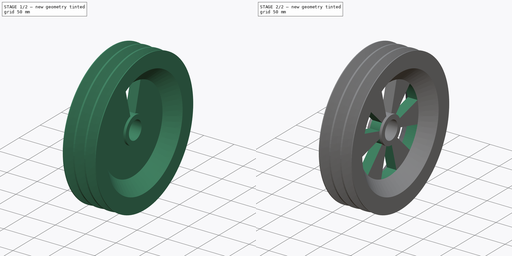
[diagram: build sequence overview — one tinted view per stage of 2, left to right]
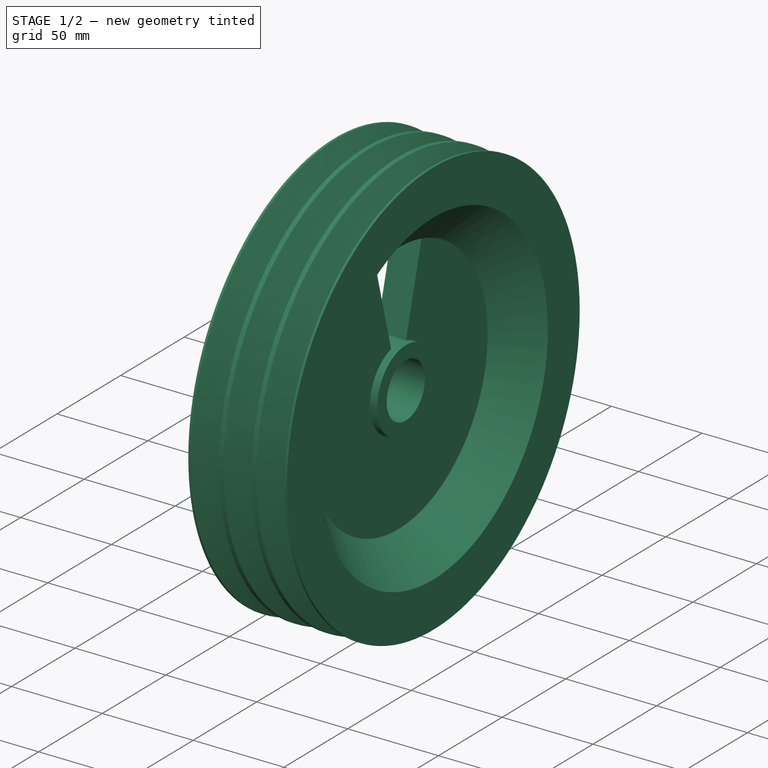
[diagram: stage 1 of 2 — iso view after this stage's code; geometry added in this stage tinted green]
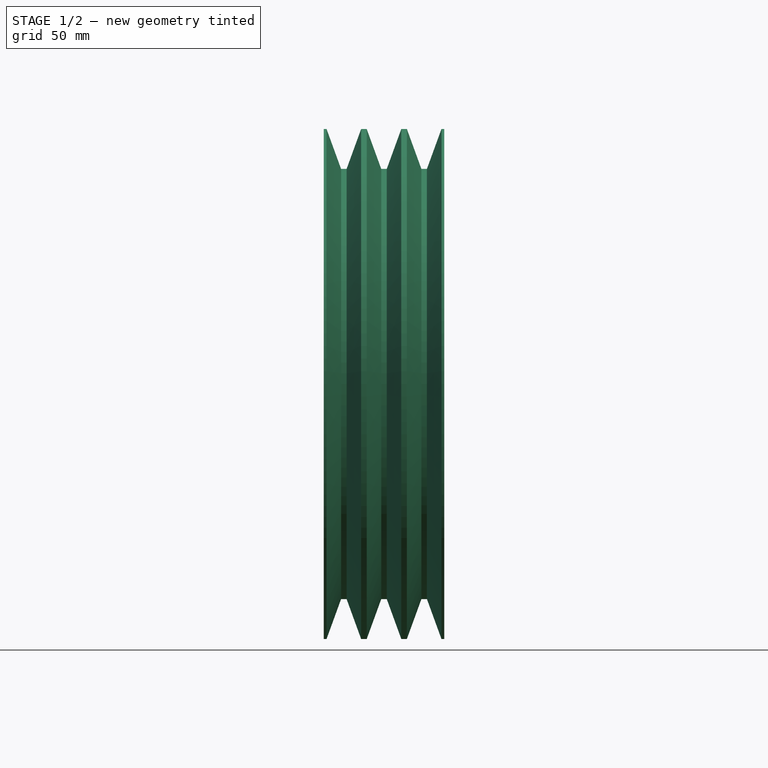
[diagram: stage 1 of 2 — front view after this stage's code; geometry added in this stage tinted green]
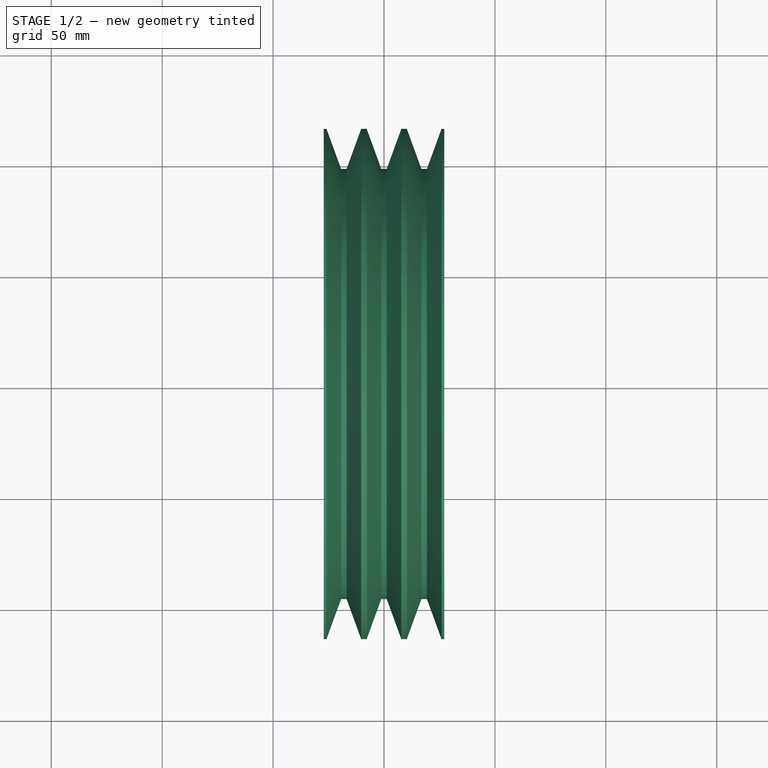
[diagram: stage 1 of 2 — top view after this stage's code; geometry added in this stage tinted green]
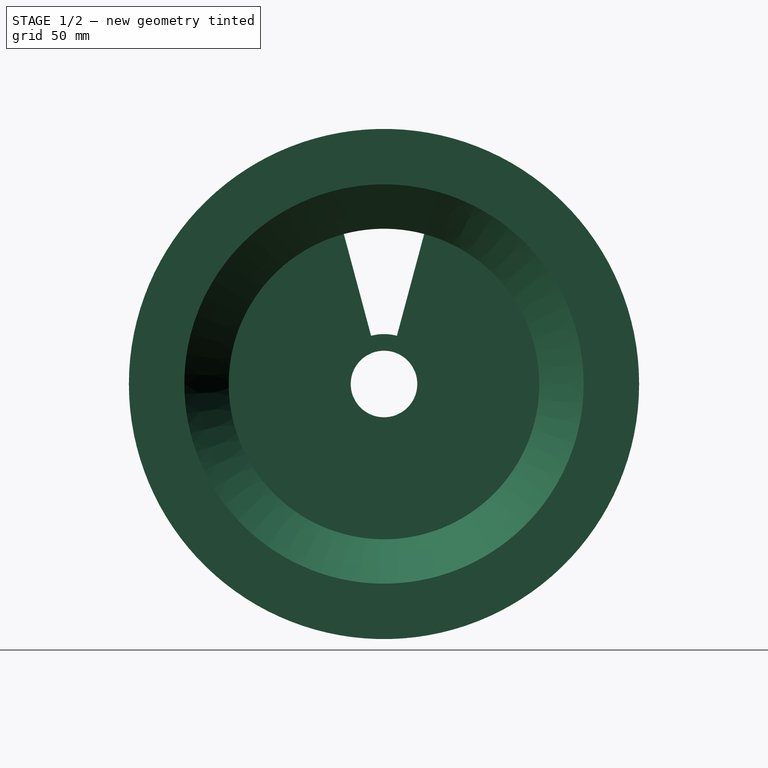
[diagram: stage 1 of 2 — right view after this stage's code; geometry added in this stage tinted green]
FCSTD DOCUMENT  (FreeCAD 0.18R4 (GitTag))
Label: l 9 Q3
License: All rights reserved
LicenseURL: http://en.wikipedia.org/wiki/All_rights_reserved
objects: Sketcher::SketchObject×2, TechDraw::DrawProjGroupItem×2, PartDesign::Revolution×1, PartDesign::Pocket×1, PartDesign::PolarPattern×1, PartDesign::Body×1, TechDraw::DrawSVGTemplate×1, TechDraw::DrawProjGroup×1, TechDraw::DrawPage×1
note: 8 computed .brp shape members not serialized (recipe doc carries the construction recipe); baked Part::Feature solids carry a one-line shape summary decoded from their .brp

FEATURE [Sketcher::SketchObject] Sketch
  MapMode = 5
  Support = -> [XY_Plane]
  sketch-geometry (24):
    g0: LineSegment StartX=-12 StartY=15 StartZ=0 EndX=12 EndY=15 EndZ=0
    g1: LineSegment StartX=12 StartY=15 StartZ=0 EndX=12 EndY=22.5 EndZ=0
    g2: LineSegment StartX=-12 StartY=22.5 StartZ=0 EndX=-12 EndY=15 EndZ=0
    g3: LineSegment StartX=8 StartY=22.5 StartZ=0 EndX=8 EndY=70 EndZ=0
    g4: LineSegment StartX=-8 StartY=70 StartZ=0 EndX=-8 EndY=22.5 EndZ=0
    g5: LineSegment StartX=-8 StartY=70 StartZ=0 EndX=-27.155 EndY=90 EndZ=0
    g6: LineSegment StartX=8 StartY=70 StartZ=0 EndX=27.155 EndY=90 EndZ=0
    g7: LineSegment StartX=-27.155 StartY=90 StartZ=0 EndX=-27.155 EndY=115 EndZ=0
    g8: LineSegment StartX=27.155 StartY=90 StartZ=0 EndX=27.155 EndY=115 EndZ=0
    g9: LineSegment StartX=-27.155 StartY=115 StartZ=0 EndX=-25.905 EndY=115 EndZ=0
    g10: LineSegment StartX=-25.905 StartY=115 StartZ=0 EndX=-19.3535 EndY=97 EndZ=0
    g11: LineSegment StartX=-19.3535 StartY=97 StartZ=0 EndX=-16.8535 EndY=97 EndZ=0
    g12: LineSegment StartX=-16.8535 StartY=97 StartZ=0 EndX=-10.3021 EndY=115 EndZ=0
    g13: LineSegment StartX=-10.3021 StartY=115 StartZ=0 EndX=-7.80207 EndY=115 EndZ=0
    g14: LineSegment StartX=-7.80207 StartY=115 StartZ=0 EndX=-1.25061 EndY=97 EndZ=0
    g15: LineSegment StartX=-1.25061 StartY=97 StartZ=0 EndX=1.24939 EndY=97 EndZ=0
    g16: LineSegment StartX=1.24939 StartY=97 StartZ=0 EndX=7.80086 EndY=115 EndZ=0
    g17: LineSegment StartX=7.80086 StartY=115 StartZ=0 EndX=10.3009 EndY=115 EndZ=0
    g18: LineSegment StartX=10.3009 StartY=115 StartZ=0 EndX=16.8523 EndY=97 EndZ=0
    g19: LineSegment StartX=16.8523 StartY=97 StartZ=0 EndX=19.3523 EndY=97 EndZ=0
    g20: LineSegment StartX=19.3523 StartY=97 StartZ=0 EndX=25.905 EndY=115 EndZ=0
    g21: LineSegment StartX=25.905 StartY=115 StartZ=0 EndX=27.155 EndY=115 EndZ=0
    g22: LineSegment StartX=-8 StartY=22.5 StartZ=0 EndX=-12 EndY=22.5 EndZ=0
    g23: LineSegment StartX=8 StartY=22.5 StartZ=0 EndX=12 EndY=22.5 EndZ=0
  constraints (71):
    c: Coincident(g0,g1)
    c: Coincident(g2,g0)
    c: Horizontal(g0)
    c: Vertical(g1)
    c: Vertical(g2)
    c: DistanceX(g-1,g0) = 12
    c: DistanceX(g0,g-1) = 12
    c: Distance(g1) = 7.5
    c: DistanceY(g-1,g0) = 15
    c: Vertical(g3)
    c: Vertical(g4)
    c: DistanceX(g2,g4) = 4
    c: DistanceX(g3,g1) = 4
    c: DistanceY(g4,g4) = 47.5
    c: Coincident(g6,g3)
    c: DistanceX(g5,g4) = 19.155
    c: DistanceX(g3,g6) = 19.155
    c: DistanceY(g3,g6) = 20
    c: DistanceY(g4,g5) = 20
    c: Vertical(g7)
    c: Vertical(g8)
    c: Coincident(g7,g5)
    c: Coincident(g8,g6)
    c: Distance(g8) = 25
    c: Distance(g7) = 25
    c: Coincident(g9,g10)
    c: Coincident(g10,g11)
    c: Coincident(g11,g12)
    c: Coincident(g12,g13)
    c: Coincident(g13,g14)
    c: Coincident(g14,g15)
    c: Coincident(g15,g16)
    c: Coincident(g16,g17)
    c: Coincident(g17,g18)
    c: Coincident(g18,g19)
    c: Coincident(g19,g20)
    c: Coincident(g20,g21)
    c: Horizontal(g9)
    c: Horizontal(g13)
    c: Horizontal(g17)
    c: Horizontal(g21)
    c: Horizontal(g19)
    c: Horizontal(g15)
    c: Horizontal(g11)
    c: Distance(g9) = 1.25
    c: Distance(g13) = 2.5
    c: Distance(g17) = 2.5
    c: Distance(g21) = 1.25
    c: Distance(g11) = 2.5
    c: Distance(g15) = 2.5
    c: Distance(g19) = 2.5
    c: Coincident(g9,g7)
    c: Coincident(g21,g8)
    c: DistanceY(g19,g20) = 18
    c: DistanceY(g18,g17) = 18
    c: DistanceY(g15,g16) = 18
    c: DistanceY(g14,g13) = 18
    c: DistanceY(g10,g12) = 18
    c: Angle(g7,g10) = 0.349066
    c: Angle(g12,g10) = 0.698132
    c: Angle(g12,g14) = 0.698132
    c: Angle(g16,g14) = 0.698132
    c: Angle(g16,g18) = 0.698132
    c: Coincident(g22,g2)
    c: Coincident(g22,g4)
    c: Coincident(g23,g3)
    c: Coincident(g23,g1)
    c: Horizontal(g23)
    c: Horizontal(g22)
    c: Distance(g2) = 7.5
    c: Distance(g3) = 47.5
FEATURE [PartDesign::Revolution] Revolution
  Angle = 360
  Axis = (1,0,0)
  Base = (0,0,0)
  Profile = -> Sketch
  ReferenceAxis = -> X_Axis
FEATURE [Sketcher::SketchObject] Sketch001
  ExternalGeometry = -> [Revolution]
  MapMode = 5
  Placement = pos=(8,0,0) rot=(0.57735,0.57735,0.57735;2.0944rad)
  Support = -> [Revolution]
  sketch-geometry (4):
    g0: ArcOfCircle CenterX=0 CenterY=0 CenterZ=0 NormalX=0 NormalY=0 NormalZ=1 AngleXU=0 Radius=22.5 StartAngle=1.309 EndAngle=1.8326
    g1: ArcOfCircle CenterX=0 CenterY=0 CenterZ=0 NormalX=0 NormalY=0 NormalZ=1 AngleXU=0 Radius=70 StartAngle=1.309 EndAngle=1.8326
    g2: LineSegment StartX=-18.1174 StartY=67.6148 StartZ=0 EndX=-5.82347 EndY=21.7333 EndZ=0
    g3: LineSegment StartX=18.1174 StartY=67.6148 StartZ=0 EndX=5.82347 EndY=21.7333 EndZ=0
  constraints (13):
    c: Coincident(g0,g-1)
    c: Coincident(g1,g0)
    c: Radius(g-3) = 22.5
    c: Radius(g0) = 22.5
    c: Radius(g1) = 70
    c: Coincident(g2,g0)
    c: Coincident(g3,g0)
    c: Coincident(g3,g1)
    c: Coincident(g2,g1)
    c: Angle(g3,g2) = 0.523599
    c: DistanceY(g0,g0) = 0
    c: DistanceY(g1,g1) = 0
    c: Distance(g1,g0) = 47.5
FEATURE [PartDesign::Pocket] Pocket
  BaseFeature = -> Revolution
  Length = 16
  Length2 = 100
  Profile = -> Sketch001
  Type = 0
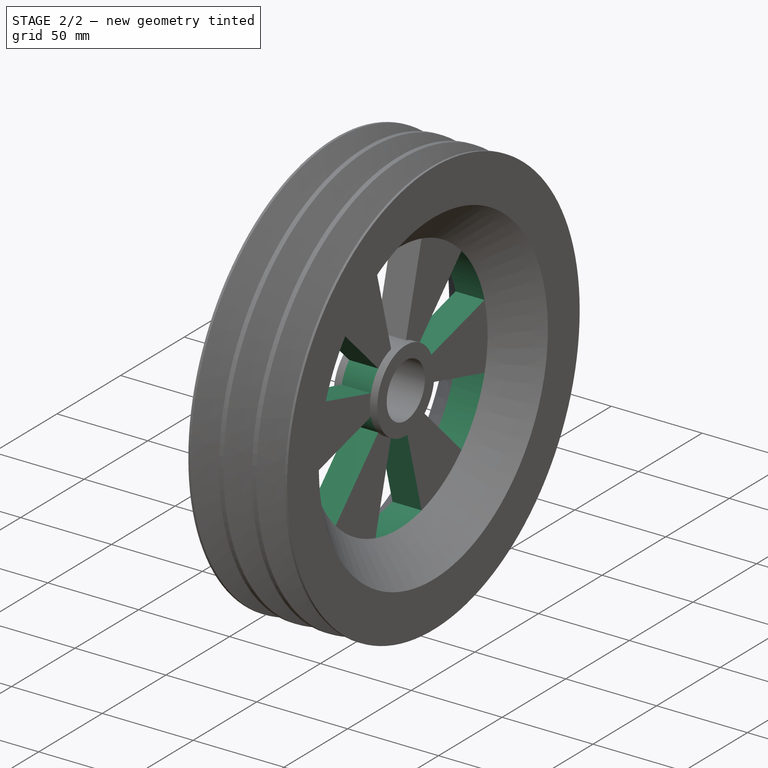
[diagram: stage 2 of 2 — iso view after this stage's code; geometry added in this stage tinted green]
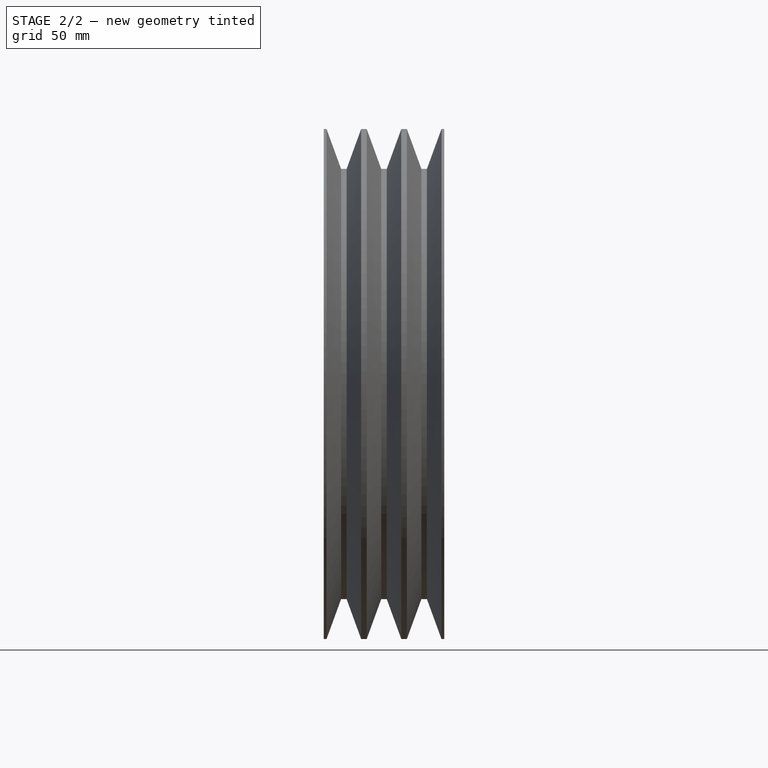
[diagram: stage 2 of 2 — front view after this stage's code; geometry added in this stage tinted green]
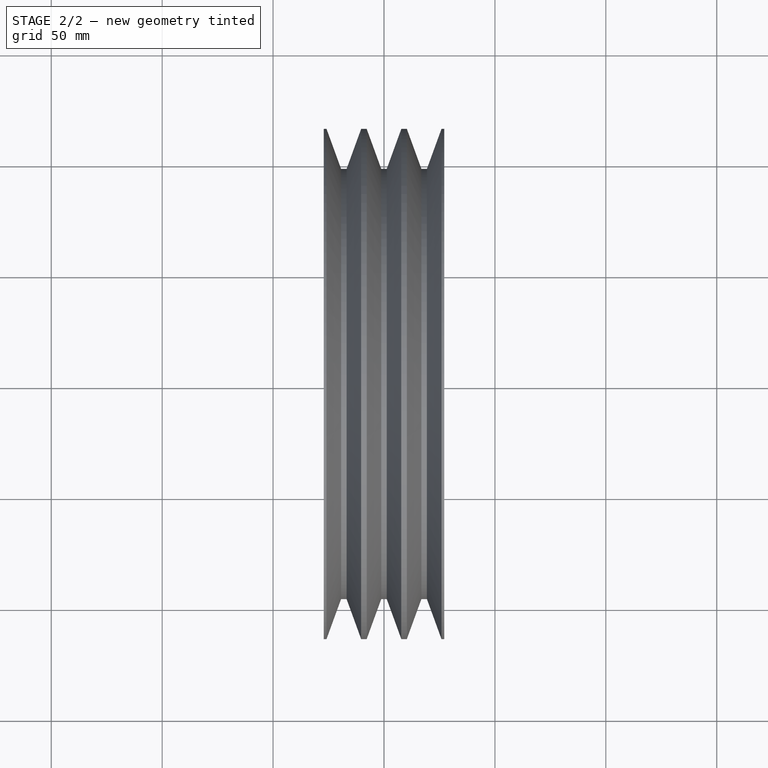
[diagram: stage 2 of 2 — top view after this stage's code; geometry added in this stage tinted green]
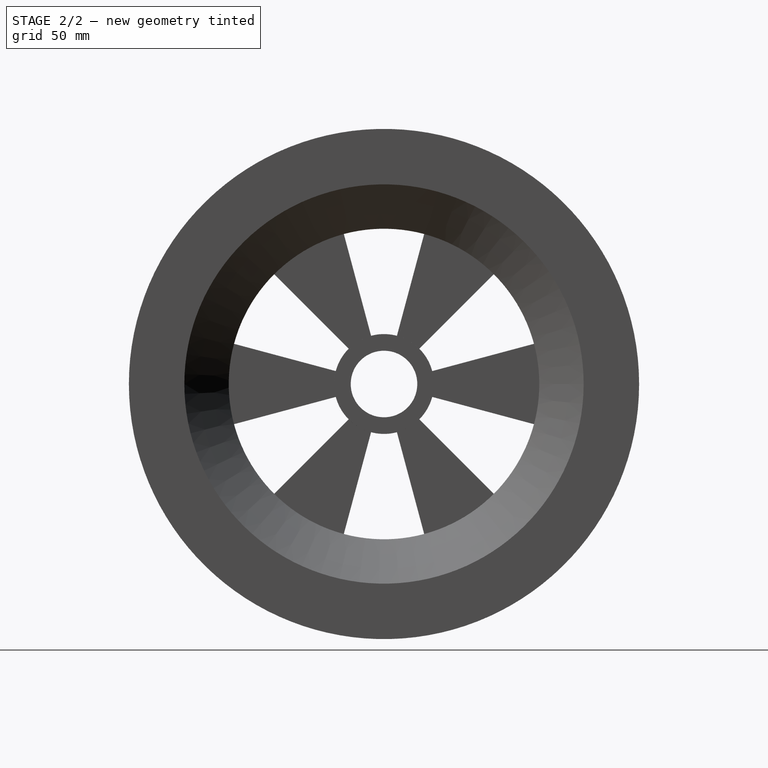
[diagram: stage 2 of 2 — right view after this stage's code; geometry added in this stage tinted green]
FEATURE [PartDesign::PolarPattern] PolarPattern
  Angle = 360
  Axis = -> Sketch001 [N_Axis]
  BaseFeature = -> Pocket
  Occurrences = 6
  Originals = -> [Pocket]
FEATURE [PartDesign::Body] Body
  Group = -> [Sketch,Revolution,Sketch001,Pocket,PolarPattern]
  Origin = -> Origin
  Tip = -> PolarPattern
FEATURE [TechDraw::DrawSVGTemplate] Template
  EditableTexts = AUTHOR_NAME=AUTHOR NAME; DN=DN; DRAWING_TITLE=DRAWING TITLE; FC-DATE=DD/MM/YYYY; FC-REV=REV A; FC-SC=SCALE; FC-SH=X / Y; FC-SI=A3; FreeCAD_DRAWING=FreeCAD DRAWING; PN=PN
  Height = 297
  Orientation = 1
  Width = 420
FEATURE [TechDraw::DrawProjGroupItem] ProjItem  label="Front"
  CoarseView = false
  Direction = (0,-1,0)
  Focus = 100
  HardHidden = false
  IsoCount = 0
  IsoHidden = false
  IsoVisible = false
  LockPosition = true
  Perspective = false
  Rotation = 0
  RotationVector = (1,0,0)
  Scale = 0.7
  ScaleType = 2
  SeamHidden = false
  SeamVisible = false
  SmoothHidden = false
  SmoothVisible = false
  Source = -> [Body]
  Type = 0
  X = 0
  Y = 0
FEATURE [TechDraw::DrawProjGroupItem] ProjItem001  label="Right"
  CoarseView = false
  Direction = (1,-1e-16,0)
  Focus = 100
  HardHidden = false
  IsoCount = 0
  IsoHidden = false
  IsoVisible = false
  LockPosition = false
  Perspective = false
  Rotation = 0
  RotationVector = (1e-16,1,0)
  Scale = 0.7
  ScaleType = 2
  SeamHidden = false
  SeamVisible = false
  SmoothHidden = false
  SmoothVisible = false
  Source = -> [Body]
  Type = 2
  X = -176
  Y = 0
FEATURE [TechDraw::DrawProjGroup] ProjGroup
  Anchor = -> ProjItem
  AutoDistribute = true
  LockPosition = false
  ProjectionType = 0
  Rotation = 0
  Scale = 0.7
  ScaleType = 0
  Source = -> [Body]
  Views = -> [ProjItem,ProjItem001]
  X = 298.805
  Y = 168.767
  spacingX = 15
  spacingY = 15
FEATURE [TechDraw::DrawPage] Page
  KeepUpdated = true
  ProjectionType = 0
  Scale = 0.7
  Template = -> Template
  Views = -> [ProjGroup]
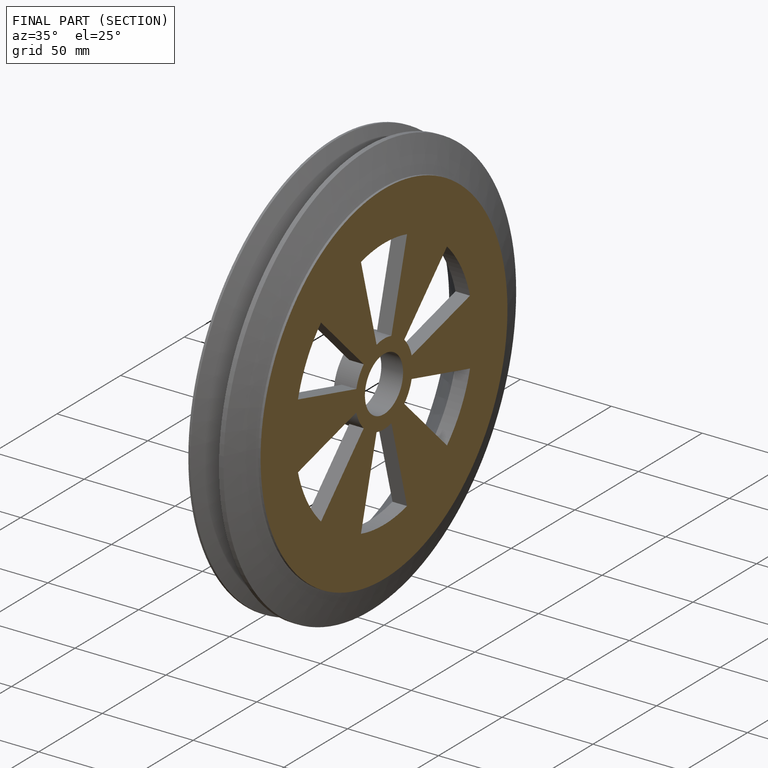
[diagram: finished part — half-section view (interior)]
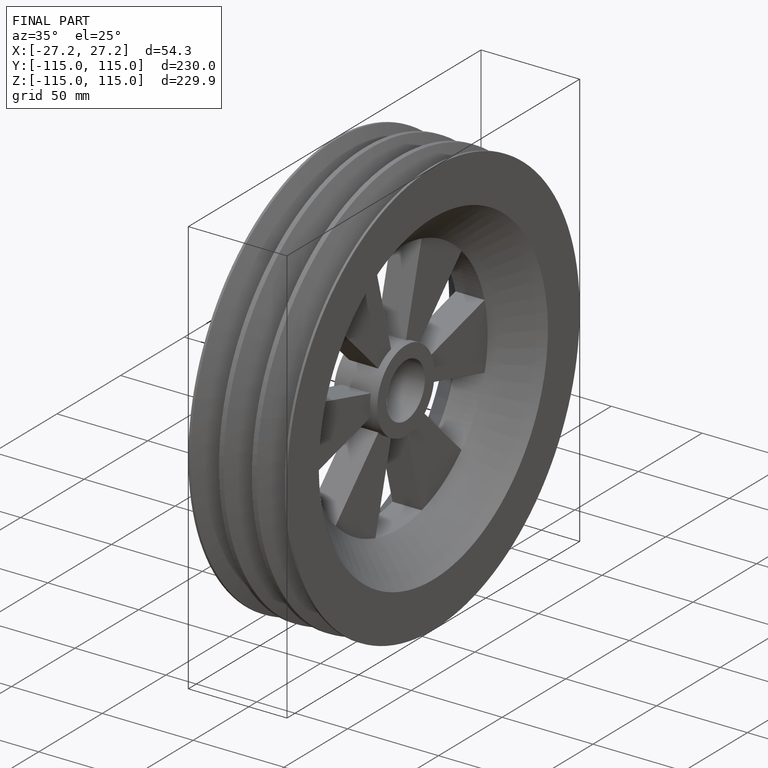
[diagram: finished part — iso view with bounding-box wireframe]
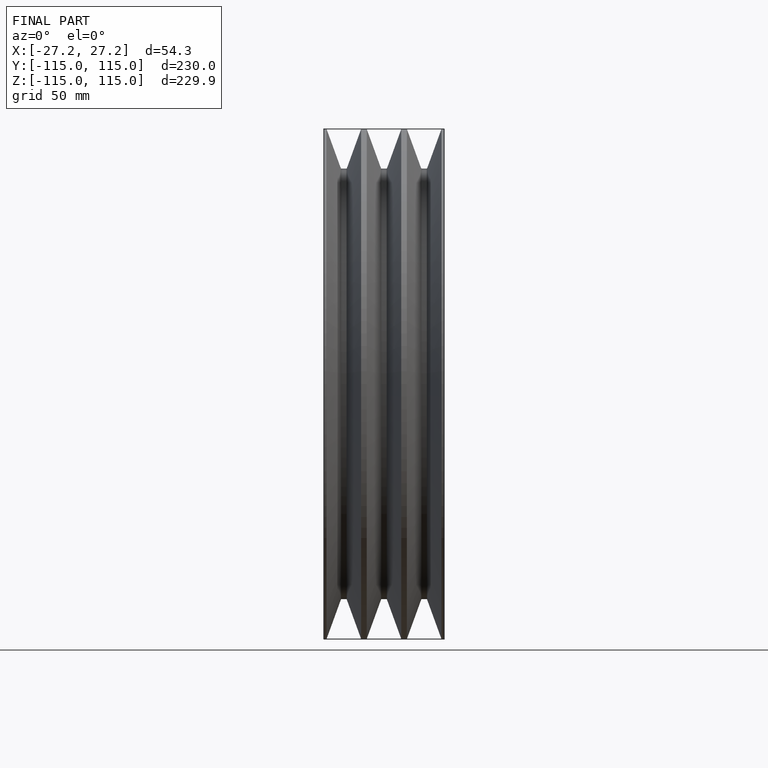
[diagram: finished part — front view with bounding-box wireframe]
